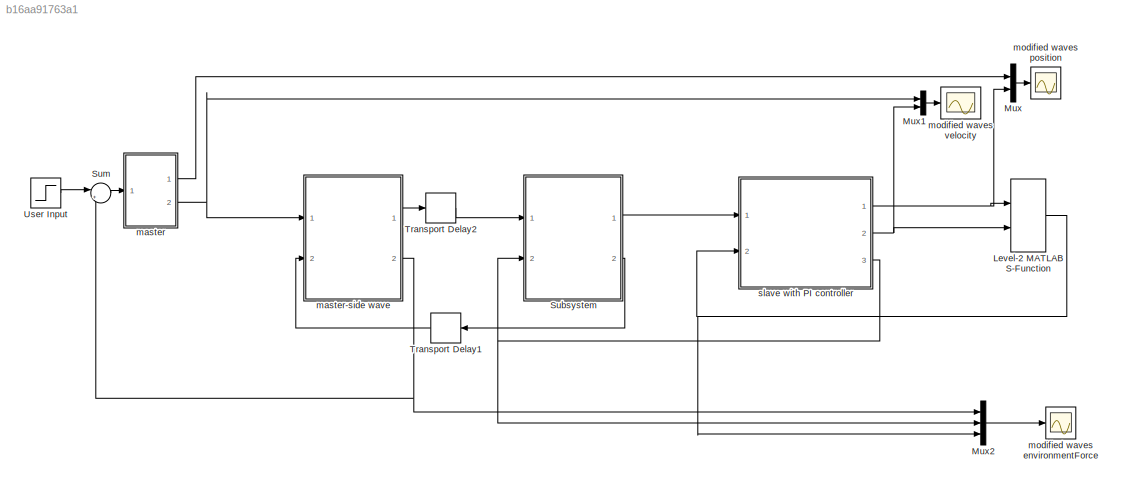
MODEL slx_b16aa91763a1
KIND model
CONFIG AbsTol = auto
CONFIG FixedStep = auto
CONFIG MaxStep = auto
CONFIG MinStep = auto
CONFIG RelTol = 1e-3
CONFIG SampleTimeConstraint = Unconstrained
CONFIG Solver = ode45
CONFIG SolverMode = Auto
CONFIG SolverName = ode45
CONFIG StartTime = 0.0
CONFIG StopTime = 50
BLOCK [M-S-Function] Level-2 MATLAB S-Function
  FunctionName = wall
  Parameters = Kwall, bwall, xwall
  Ports = [2, 1]
BLOCK [Mux] Mux
  DisplayOption = bar
  Inputs = 2
  Ports = [2, 1]
BLOCK [Mux] Mux1
  DisplayOption = bar
  Inputs = 2
  Ports = [2, 1]
BLOCK [Mux] Mux2
  DisplayOption = bar
  Inputs = 3
  Ports = [3, 1]
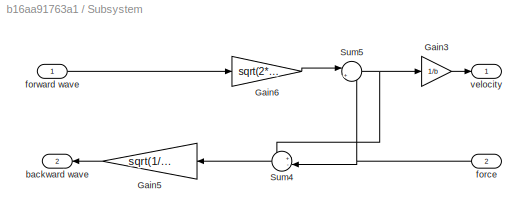
BLOCK [SubSystem] Subsystem
  Ports = [2, 2]
  RequestExecContextInheritance = off
  Variant = off
BLOCK [Gain] Subsystem/Gain3
  Gain = 1/b
  OutDataTypeStr = Inherit: Inherit via internal rule
  ParamDataTypeStr = Inherit: Inherit via internal rule
  SaturateOnIntegerOverflow = off
BLOCK [Gain] Subsystem/Gain5
  Gain = sqrt(1/(2*b))
  OutDataTypeStr = Inherit: Inherit via internal rule
  ParamDataTypeStr = Inherit: Inherit via internal rule
  SaturateOnIntegerOverflow = off
BLOCK [Gain] Subsystem/Gain6
  Gain = sqrt(2*b)
  OutDataTypeStr = Inherit: Inherit via internal rule
  ParamDataTypeStr = Inherit: Inherit via internal rule
  SaturateOnIntegerOverflow = off
BLOCK [Sum] Subsystem/Sum4
  IconShape = round
  InputSameDT = off
  Inputs = +-|
  OutDataTypeStr = Inherit: Inherit via internal rule
  Ports = [2, 1]
  SaturateOnIntegerOverflow = off
BLOCK [Sum] Subsystem/Sum5
  IconShape = round
  InputSameDT = off
  Inputs = |+-
  OutDataTypeStr = Inherit: Inherit via internal rule
  Ports = [2, 1]
  SaturateOnIntegerOverflow = off
BLOCK [Outport] Subsystem/backward wave
  IconDisplay = Port number
  Port = 2
BLOCK [Inport] Subsystem/force
  IconDisplay = Port number
  Port = 2
BLOCK [Inport] Subsystem/forward wave
  IconDisplay = Port number
BLOCK [Outport] Subsystem/velocity
  IconDisplay = Port number
BLOCK [Sum] Sum
  IconShape = round
  InputSameDT = off
  Inputs = |+-
  OutDataTypeStr = Inherit: Inherit via internal rule
  Ports = [2, 1]
  SaturateOnIntegerOverflow = off
BLOCK [TransportDelay] Transport Delay1
  DelayTime = Td
  Ports = [1, 1]
BLOCK [TransportDelay] Transport Delay2
  DelayTime = Td
  Ports = [1, 1]
BLOCK [Step] User Input
  SampleTime = 0
  Time = 0
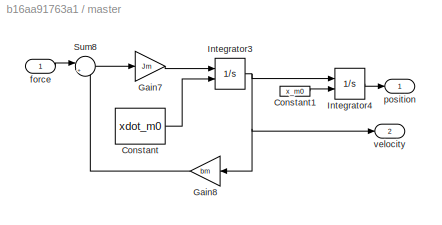
BLOCK [SubSystem] master 
  Ports = [1, 2]
  RequestExecContextInheritance = off
  Variant = off
BLOCK [Constant] master /Constant
  Value = xdot_m0
BLOCK [Constant] master /Constant1
  Value = x_m0
BLOCK [Gain] master /Gain7
  Gain = Jm
  OutDataTypeStr = Inherit: Inherit via internal rule
  ParamDataTypeStr = Inherit: Inherit via internal rule
  SaturateOnIntegerOverflow = off
BLOCK [Gain] master /Gain8
  Gain = bm
  OutDataTypeStr = Inherit: Inherit via internal rule
  ParamDataTypeStr = Inherit: Inherit via internal rule
  SaturateOnIntegerOverflow = off
BLOCK [Integrator] master /Integrator3
  InitialConditionSource = external
  Ports = [2, 1]
BLOCK [Integrator] master /Integrator4
  InitialConditionSource = external
  Ports = [2, 1]
BLOCK [Sum] master /Sum8
  IconShape = round
  InputSameDT = off
  Inputs = |+-
  OutDataTypeStr = Inherit: Inherit via internal rule
  Ports = [2, 1]
  SaturateOnIntegerOverflow = off
BLOCK [Inport] master /force
  IconDisplay = Port number
BLOCK [Outport] master /position 
  IconDisplay = Port number
BLOCK [Outport] master /velocity
  IconDisplay = Port number
  Port = 2
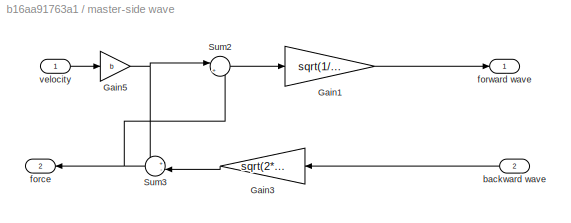
BLOCK [SubSystem] master-side wave
  Ports = [2, 2]
  RequestExecContextInheritance = off
  Variant = off
BLOCK [Gain] master-side wave/Gain1
  Gain = sqrt(1/(2*b))
  OutDataTypeStr = Inherit: Inherit via internal rule
  ParamDataTypeStr = Inherit: Inherit via internal rule
  SaturateOnIntegerOverflow = off
BLOCK [Gain] master-side wave/Gain3
  Gain = sqrt(2*b)
  OutDataTypeStr = Inherit: Inherit via internal rule
  ParamDataTypeStr = Inherit: Inherit via internal rule
  SaturateOnIntegerOverflow = off
BLOCK [Gain] master-side wave/Gain5
  Gain = b
  OutDataTypeStr = Inherit: Inherit via internal rule
  ParamDataTypeStr = Inherit: Inherit via internal rule
  SaturateOnIntegerOverflow = off
BLOCK [Sum] master-side wave/Sum2
  IconShape = round
  InputSameDT = off
  Inputs = |++
  OutDataTypeStr = Inherit: Inherit via internal rule
  Ports = [2, 1]
  SaturateOnIntegerOverflow = off
BLOCK [Sum] master-side wave/Sum3
  IconShape = round
  InputSameDT = off
  Inputs = +-|
  OutDataTypeStr = Inherit: Inherit via internal rule
  Ports = [2, 1]
  SaturateOnIntegerOverflow = off
BLOCK [Inport] master-side wave/backward wave
  IconDisplay = Port number
  Port = 2
BLOCK [Outport] master-side wave/force
  IconDisplay = Port number
  Port = 2
BLOCK [Outport] master-side wave/forward wave
  IconDisplay = Port number
BLOCK [Inport] master-side wave/velocity
  IconDisplay = Port number
BLOCK [Scope] modified waves environmentForce
  Ports = [1]
  ScopeSpecificationString = Simulink.scopes.TimeScopeBlockCfg('CurrentConfiguration', extmgr.ConfigurationSet(extmgr.Configuration('Core','General UI',true,'FigureColor',[0.156862745098039 0.156862745098039 0.156862745098039]),extmgr.Configuration('Core','Source UI',true),extmgr.Configuration('Sources','WiredSimulink',true,'DataLoggingVariableName','ScopeData2','DataLoggingSaveFormat','StructureWithTime','DataLoggingDecimati...<+2896ch>
BLOCK [Scope] modified waves position
  Ports = [1]
  ScopeSpecificationString = Simulink.scopes.TimeScopeBlockCfg('CurrentConfiguration', extmgr.ConfigurationSet(extmgr.Configuration('Core','General UI',true,'FigureColor',[0.156862745098039 0.156862745098039 0.156862745098039]),extmgr.Configuration('Core','Source UI',true),extmgr.Configuration('Sources','WiredSimulink',true,'DataLoggingSaveFormat','StructureWithTime','DataLoggingDecimation','1','DataLoggingDecimateData',true)...<+2820ch>
BLOCK [Scope] modified waves velocity
  Ports = [1]
  ScopeSpecificationString = Simulink.scopes.TimeScopeBlockCfg('CurrentConfiguration', extmgr.ConfigurationSet(extmgr.Configuration('Core','General UI',true,'FigureColor',[0.156862745098039 0.156862745098039 0.156862745098039]),extmgr.Configuration('Core','Source UI',true),extmgr.Configuration('Sources','WiredSimulink',true,'DataLoggingVariableName','ScopeData1','DataLoggingSaveFormat','StructureWithTime','DataLoggingDecimati...<+2859ch>
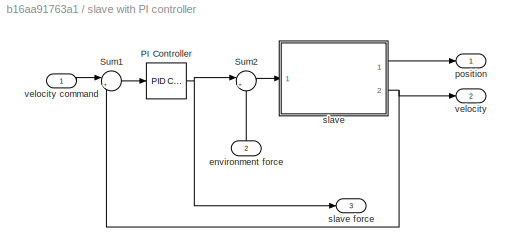
BLOCK [SubSystem] slave with PI controller
  Ports = [2, 3]
  RequestExecContextInheritance = off
  Variant = off
BLOCK [Reference] slave with PI controller/PI Controller  REF=simulink/Continuous/PID Controller
  Ports = [1, 1]
  SourceBlock = simulink/Continuous/PID Controller
  SourceType = PID 1dof
BLOCK [Sum] slave with PI controller/Sum1
  IconShape = round
  InputSameDT = off
  Inputs = |+-
  OutDataTypeStr = Inherit: Inherit via internal rule
  Ports = [2, 1]
  SaturateOnIntegerOverflow = off
BLOCK [Sum] slave with PI controller/Sum2
  IconShape = round
  InputSameDT = off
  Inputs = |++
  OutDataTypeStr = Inherit: Inherit via internal rule
  Ports = [2, 1]
  SaturateOnIntegerOverflow = off
BLOCK [Inport] slave with PI controller/environment force
  IconDisplay = Port number
  Port = 2
BLOCK [Outport] slave with PI controller/position
  IconDisplay = Port number
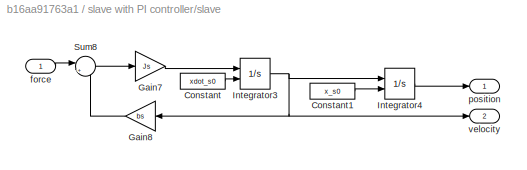
BLOCK [SubSystem] slave with PI controller/slave 
  Ports = [1, 2]
  RequestExecContextInheritance = off
  Variant = off
BLOCK [Constant] slave with PI controller/slave /Constant
  Value = xdot_s0
BLOCK [Constant] slave with PI controller/slave /Constant1
  Value = x_s0
BLOCK [Gain] slave with PI controller/slave /Gain7
  Gain = Js
  OutDataTypeStr = Inherit: Inherit via internal rule
  ParamDataTypeStr = Inherit: Inherit via internal rule
  SaturateOnIntegerOverflow = off
BLOCK [Gain] slave with PI controller/slave /Gain8
  Gain = bs
  OutDataTypeStr = Inherit: Inherit via internal rule
  ParamDataTypeStr = Inherit: Inherit via internal rule
  SaturateOnIntegerOverflow = off
BLOCK [Integrator] slave with PI controller/slave /Integrator3
  InitialConditionSource = external
  Ports = [2, 1]
BLOCK [Integrator] slave with PI controller/slave /Integrator4
  InitialConditionSource = external
  Ports = [2, 1]
BLOCK [Sum] slave with PI controller/slave /Sum8
  IconShape = round
  InputSameDT = off
  Inputs = |+-
  OutDataTypeStr = Inherit: Inherit via internal rule
  Ports = [2, 1]
  SaturateOnIntegerOverflow = off
BLOCK [Inport] slave with PI controller/slave /force
  IconDisplay = Port number
BLOCK [Outport] slave with PI controller/slave /position 
  IconDisplay = Port number
BLOCK [Outport] slave with PI controller/slave /velocity
  IconDisplay = Port number
  Port = 2
BLOCK [Outport] slave with PI controller/slave force
  IconDisplay = Port number
  Port = 3
BLOCK [Outport] slave with PI controller/velocity
  IconDisplay = Port number
  Port = 2
BLOCK [Inport] slave with PI controller/velocity command
  IconDisplay = Port number
NET Level-2 MATLAB S-Function:1 -> Mux2:3, slave with PI controller:2
LINE Mux1:1 -> modified waves velocity:1
LINE Mux2:1 -> modified waves environmentForce:1
LINE Mux:1 -> modified waves position:1
LINE Subsystem/Gain3:1 -> Subsystem/velocity:1
LINE Subsystem/Gain5:1 -> Subsystem/backward wave:1
LINE Subsystem/Gain6:1 -> Subsystem/Sum5:1
LINE Subsystem/Sum4:1 -> Subsystem/Gain5:1
NET Subsystem/Sum5:1 -> Subsystem/Gain3:1, Subsystem/Sum4:1
NET Subsystem/force:1 -> Subsystem/Sum4:2, Subsystem/Sum5:2
LINE Subsystem/forward wave:1 -> Subsystem/Gain6:1
LINE Subsystem:1 -> slave with PI controller:1
LINE Subsystem:2 -> Transport Delay1:1
LINE Sum:1 -> master :1
LINE Transport Delay1:1 -> master-side wave:2
LINE Transport Delay2:1 -> Subsystem:1
LINE User Input:1 -> Sum:1
LINE master /Constant1:1 -> master /Integrator4:2
LINE master /Constant:1 -> master /Integrator3:2
LINE master /Gain7:1 -> master /Integrator3:1
LINE master /Gain8:1 -> master /Sum8:2
NET master /Integrator3:1 -> master /Gain8:1, master /Integrator4:1, master /velocity:1
LINE master /Integrator4:1 -> master /position :1
LINE master /Sum8:1 -> master /Gain7:1
LINE master /force:1 -> master /Sum8:1
LINE master :1 -> Mux:1
NET master :2 -> Mux1:1, master-side wave:1
LINE master-side wave/Gain1:1 -> master-side wave/forward wave:1
LINE master-side wave/Gain3:1 -> master-side wave/Sum3:2
NET master-side wave/Gain5:1 -> master-side wave/Sum2:1, master-side wave/Sum3:1
LINE master-side wave/Sum2:1 -> master-side wave/Gain1:1
NET master-side wave/Sum3:1 -> master-side wave/Sum2:2, master-side wave/force:1
LINE master-side wave/backward wave:1 -> master-side wave/Gain3:1
LINE master-side wave/velocity:1 -> master-side wave/Gain5:1
LINE master-side wave:1 -> Transport Delay2:1
NET master-side wave:2 -> Mux2:1, Sum:2
NET slave with PI controller/PI Controller:1 -> slave with PI controller/Sum2:1, slave with PI controller/slave force:1
LINE slave with PI controller/Sum1:1 -> slave with PI controller/PI Controller:1
LINE slave with PI controller/Sum2:1 -> slave with PI controller/slave :1
LINE slave with PI controller/environment force:1 -> slave with PI controller/Sum2:2
LINE slave with PI controller/slave /Constant1:1 -> slave with PI controller/slave /Integrator4:2
LINE slave with PI controller/slave /Constant:1 -> slave with PI controller/slave /Integrator3:2
LINE slave with PI controller/slave /Gain7:1 -> slave with PI controller/slave /Integrator3:1
LINE slave with PI controller/slave /Gain8:1 -> slave with PI controller/slave /Sum8:2
NET slave with PI controller/slave /Integrator3:1 -> slave with PI controller/slave /Gain8:1, slave with PI controller/slave /Integrator4:1, slave with PI controller/slave /velocity:1
LINE slave with PI controller/slave /Integrator4:1 -> slave with PI controller/slave /position :1
LINE slave with PI controller/slave /Sum8:1 -> slave with PI controller/slave /Gain7:1
LINE slave with PI controller/slave /force:1 -> slave with PI controller/slave /Sum8:1
LINE slave with PI controller/slave :1 -> slave with PI controller/position:1
NET slave with PI controller/slave :2 -> slave with PI controller/Sum1:2, slave with PI controller/velocity:1
LINE slave with PI controller/velocity command:1 -> slave with PI controller/Sum1:1
NET slave with PI controller:1 -> Level-2 MATLAB S-Function:1, Mux:2
NET slave with PI controller:2 -> Level-2 MATLAB S-Function:2, Mux1:2
NET slave with PI controller:3 -> Mux2:2, Subsystem:2
note: NET lines group one-source signal fan-out (src -> all destinations, sorted); 1:1 wires keep LINE
